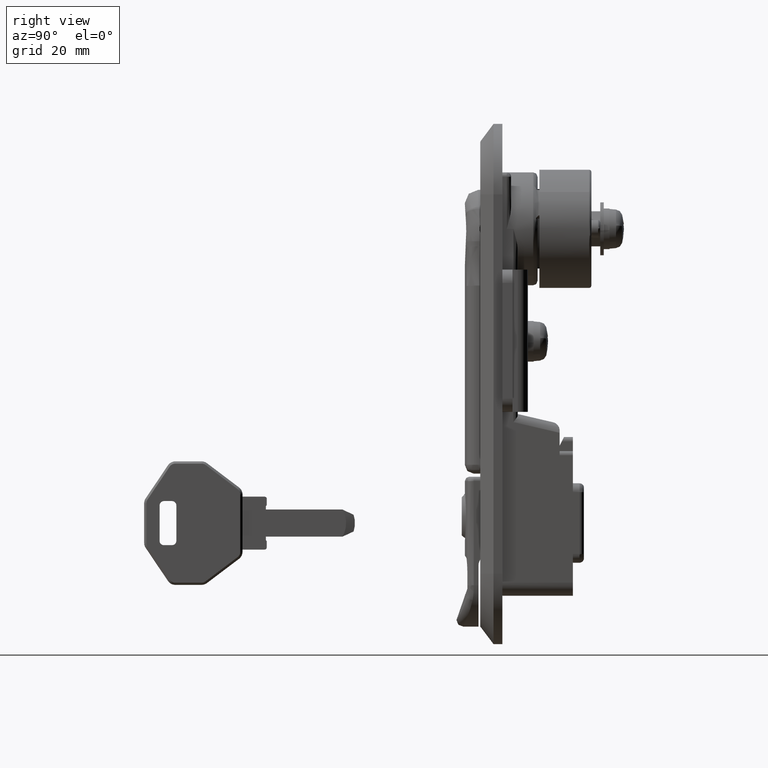
[diagram: clean part render]
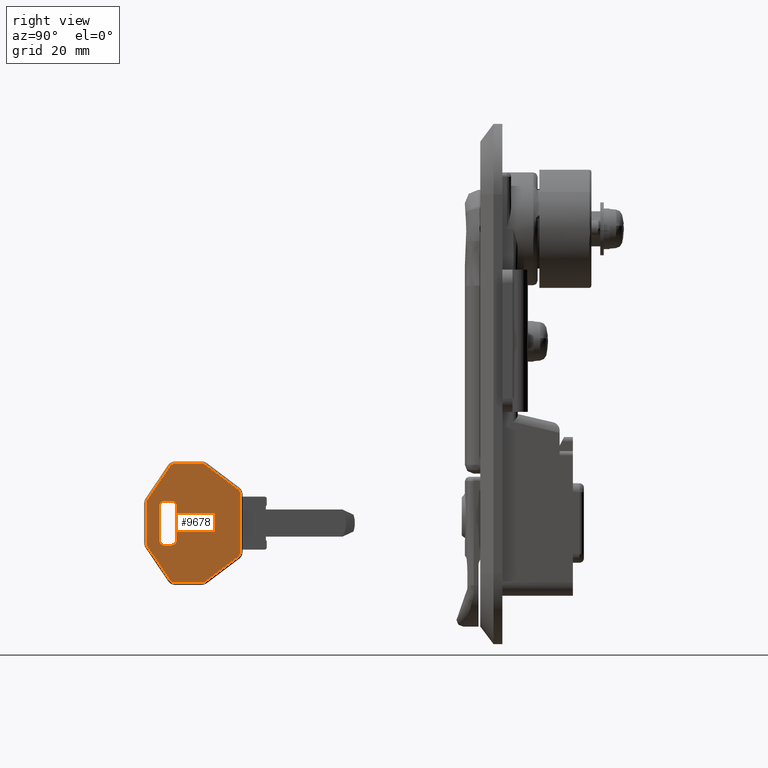
[diagram: same view with one face highlighted and labeled with its STEP entity id]
A machine part, right view. The second image highlights one B-rep face of the part: STEP entity #9678.
In plain terms, the highlighted face is a freeform B-spline surface patch.
Its self-contained STEP definition (entity closure, byte-faithful):
#8538=CARTESIAN_POINT('',(-69.409344827680201,-1.400000000000000,5.204633904281980));
#8539=VERTEX_POINT('',#8538);
#8545=CARTESIAN_POINT('',(-69.409344827680300,-1.400000000000000,-7.804633904440220));
#8546=VERTEX_POINT('',#8545);
#8547=CARTESIAN_POINT('',(-69.409344827680300,-1.400000000000000,-7.804633904440220));
#8548=CARTESIAN_POINT('',(-69.409344827680201,-1.400000000000000,5.204633904281980));
#8549=QUASI_UNIFORM_CURVE('',1,(#8547,#8548),.UNSPECIFIED.,.F.,.U.);
#8550=EDGE_CURVE('',#8546,#8539,#8549,.T.);
#8583=CARTESIAN_POINT('',(-70.004898363867497,-1.400000000000000,6.401286148710830));
#8584=VERTEX_POINT('',#8583);
#8590=CARTESIAN_POINT('',(-69.409344827680130,-1.400000000000000,5.204633904281980));
#8591=CARTESIAN_POINT('',(-69.409344827680130,-1.400000000000000,5.951158476011102));
#8592=CARTESIAN_POINT('',(-70.004898363867468,-1.400000000000000,6.401286148710874));
#8600=(BOUNDED_CURVE()B_SPLINE_CURVE(2,(#8590,#8591,#8592),.UNSPECIFIED.,.F.,.U.)CURVE()GEOMETRIC_REPRESENTATION_ITEM()QUASI_UNIFORM_CURVE()RATIONAL_B_SPLINE_CURVE((1.0,0.895255357204980,1.0))REPRESENTATION_ITEM(''));
#8601=EDGE_CURVE('',#8539,#8584,#8600,.T.);
#8634=CARTESIAN_POINT('',(-70.004898363867909,-1.400000000000000,-9.001286148869349));
#8635=VERTEX_POINT('',#8634);
#8657=CARTESIAN_POINT('',(-70.004898363867895,-1.400000000000000,-9.001286148869360));
#8658=CARTESIAN_POINT('',(-69.409344827680243,-1.400000000000000,-8.551158476169595));
#8659=CARTESIAN_POINT('',(-69.409344827680243,-1.400000000000000,-7.804633904440220));
#8667=(BOUNDED_CURVE()B_SPLINE_CURVE(2,(#8657,#8658,#8659),.UNSPECIFIED.,.F.,.U.)CURVE()GEOMETRIC_REPRESENTATION_ITEM()QUASI_UNIFORM_CURVE()RATIONAL_B_SPLINE_CURVE((1.0,0.895255357204920,1.0))REPRESENTATION_ITEM(''));
#8668=EDGE_CURVE('',#8635,#8546,#8667,.T.);
#8680=CARTESIAN_POINT('',(-77.275690428870107,-1.400000000000000,11.896652244352360));
#8681=VERTEX_POINT('',#8680);
#8687=CARTESIAN_POINT('',(-70.004898363867497,-1.400000000000000,6.401286148710830));
#8688=CARTESIAN_POINT('',(-77.275690428870107,-1.400000000000000,11.896652244352360));
#8689=QUASI_UNIFORM_CURVE('',1,(#8687,#8688),.UNSPECIFIED.,.F.,.U.);
#8690=EDGE_CURVE('',#8584,#8681,#8689,.T.);
#8706=CARTESIAN_POINT('',(-77.275690428863498,-1.400000000000000,-14.496652244505359));
#8707=VERTEX_POINT('',#8706);
#8721=CARTESIAN_POINT('',(-77.275690428863498,-1.400000000000000,-14.496652244505359));
#8722=CARTESIAN_POINT('',(-70.004898363867909,-1.400000000000000,-9.001286148869349));
#8723=QUASI_UNIFORM_CURVE('',1,(#8721,#8722),.UNSPECIFIED.,.F.,.U.);
#8724=EDGE_CURVE('',#8707,#8635,#8723,.T.);
#8745=CARTESIAN_POINT('',(-78.180136892682796,-1.400000000000000,12.199999999923421));
#8746=VERTEX_POINT('',#8745);
#8752=CARTESIAN_POINT('',(-77.275690428870064,-1.400000000000000,11.896652244352421));
#8753=CARTESIAN_POINT('',(-77.677042843933251,-1.400000000000000,12.199999999923412));
#8754=CARTESIAN_POINT('',(-78.180136892682597,-1.400000000000000,12.199999999923421));
#8762=(BOUNDED_CURVE()B_SPLINE_CURVE(2,(#8752,#8753,#8754),.UNSPECIFIED.,.F.,.U.)CURVE()GEOMETRIC_REPRESENTATION_ITEM()QUASI_UNIFORM_CURVE()RATIONAL_B_SPLINE_CURVE((1.0,0.948094974924101,1.0))REPRESENTATION_ITEM(''));
#8763=EDGE_CURVE('',#8681,#8746,#8762,.T.);
#8796=CARTESIAN_POINT('',(-78.180136892676501,-1.400000000000000,-14.800000000076420));
#8797=VERTEX_POINT('',#8796);
#8819=CARTESIAN_POINT('',(-78.180136892676501,-1.400000000000000,-14.800000000076370));
#8820=CARTESIAN_POINT('',(-77.677042843926870,-1.400000000000000,-14.800000000076542));
#8821=CARTESIAN_POINT('',(-77.275690428863484,-1.400000000000000,-14.496652244505380));
#8829=(BOUNDED_CURVE()B_SPLINE_CURVE(2,(#8819,#8820,#8821),.UNSPECIFIED.,.F.,.U.)CURVE()GEOMETRIC_REPRESENTATION_ITEM()QUASI_UNIFORM_CURVE()RATIONAL_B_SPLINE_CURVE((1.0,0.948094974924049,1.0))REPRESENTATION_ITEM(''));
#8830=EDGE_CURVE('',#8797,#8707,#8829,.T.);
#8842=CARTESIAN_POINT('',(-84.145616259275002,-1.400000000000000,12.199999999925160));
#8843=VERTEX_POINT('',#8842);
#8849=CARTESIAN_POINT('',(-78.180136892682796,-1.400000000000000,12.199999999923421));
#8850=CARTESIAN_POINT('',(-84.145616259275002,-1.400000000000000,12.199999999925160));
#8851=QUASI_UNIFORM_CURVE('',1,(#8849,#8850),.UNSPECIFIED.,.F.,.U.);
#8852=EDGE_CURVE('',#8746,#8843,#8851,.T.);
#8868=CARTESIAN_POINT('',(-84.145616259275400,-1.400000000000000,-14.800000000033499));
#8869=VERTEX_POINT('',#8868);
#8883=CARTESIAN_POINT('',(-84.145616259275400,-1.400000000000000,-14.800000000033499));
#8884=CARTESIAN_POINT('',(-78.180136892676501,-1.400000000000000,-14.800000000076420));
#8885=QUASI_UNIFORM_CURVE('',1,(#8883,#8884),.UNSPECIFIED.,.F.,.U.);
#8886=EDGE_CURVE('',#8869,#8797,#8885,.T.);
#8907=CARTESIAN_POINT('',(-85.389375090342710,-1.400000000000000,11.538489099521721));
#8908=VERTEX_POINT('',#8907);
#8914=CARTESIAN_POINT('',(-84.145616259275002,-1.400000000000000,12.199999999925160));
#8915=CARTESIAN_POINT('',(-84.943412685575964,-1.400000000000000,12.199999999925117));
#8916=CARTESIAN_POINT('',(-85.389375090342682,-1.400000000000000,11.538489099521710));
#8924=(BOUNDED_CURVE()B_SPLINE_CURVE(2,(#8914,#8915,#8916),.UNSPECIFIED.,.F.,.U.)CURVE()GEOMETRIC_REPRESENTATION_ITEM()QUASI_UNIFORM_CURVE()RATIONAL_B_SPLINE_CURVE((1.0,0.882890914287938,1.0))REPRESENTATION_ITEM(''));
#8925=EDGE_CURVE('',#8843,#8908,#8924,.T.);
#8958=CARTESIAN_POINT('',(-85.389375090342597,-1.400000000000000,-14.138489099630339));
#8959=VERTEX_POINT('',#8958);
#8981=CARTESIAN_POINT('',(-85.389375090342540,-1.400000000000000,-14.138489099630300));
#8982=CARTESIAN_POINT('',(-84.943412685575808,-1.400000000000001,-14.800000000033496));
#8983=CARTESIAN_POINT('',(-84.145616259275499,-1.400000000000000,-14.800000000033490));
#8991=(BOUNDED_CURVE()B_SPLINE_CURVE(2,(#8981,#8982,#8983),.UNSPECIFIED.,.F.,.U.)CURVE()GEOMETRIC_REPRESENTATION_ITEM()QUASI_UNIFORM_CURVE()RATIONAL_B_SPLINE_CURVE((1.0,0.882890914287979,1.0))REPRESENTATION_ITEM(''));
#8992=EDGE_CURVE('',#8959,#8869,#8991,.T.);
#9004=CARTESIAN_POINT('',(-90.453103658747295,-1.400000000000000,4.027291723061801));
#9005=VERTEX_POINT('',#9004);
#9011=CARTESIAN_POINT('',(-85.389375090342710,-1.400000000000000,11.538489099521721));
#9012=CARTESIAN_POINT('',(-90.453103658747295,-1.400000000000000,4.027291723061801));
#9013=QUASI_UNIFORM_CURVE('',1,(#9011,#9012),.UNSPECIFIED.,.F.,.U.);
#9014=EDGE_CURVE('',#8908,#9005,#9013,.T.);
#9030=CARTESIAN_POINT('',(-90.453103658748304,-1.400000000000000,-6.627291723206710));
#9031=VERTEX_POINT('',#9030);
#9045=CARTESIAN_POINT('',(-90.453103658748304,-1.400000000000000,-6.627291723206710));
#9046=CARTESIAN_POINT('',(-85.389375090342597,-1.400000000000000,-14.138489099630339));
#9047=QUASI_UNIFORM_CURVE('',1,(#9045,#9046),.UNSPECIFIED.,.F.,.U.);
#9048=EDGE_CURVE('',#9031,#8959,#9047,.T.);
#9069=CARTESIAN_POINT('',(-90.709344827679985,-1.400000000000000,3.188802623464980));
#9070=VERTEX_POINT('',#9069);
#9076=CARTESIAN_POINT('',(-90.453103658747182,-1.400000000000000,4.027291723061716));
#9077=CARTESIAN_POINT('',(-90.709344827680056,-1.400000000000000,3.647200655811702));
#9078=CARTESIAN_POINT('',(-90.709344827680056,-1.400000000000000,3.188802623464980));
#9086=(BOUNDED_CURVE()B_SPLINE_CURVE(2,(#9076,#9077,#9078),.UNSPECIFIED.,.F.,.U.)CURVE()GEOMETRIC_REPRESENTATION_ITEM()QUASI_UNIFORM_CURVE()RATIONAL_B_SPLINE_CURVE((1.0,0.956340042569780,1.0))REPRESENTATION_ITEM(''));
#9087=EDGE_CURVE('',#9005,#9070,#9086,.T.);
#9120=CARTESIAN_POINT('',(-90.709344827680198,-1.400000000000000,-5.788802623611520));
#9121=VERTEX_POINT('',#9120);
#9143=CARTESIAN_POINT('',(-90.709344827680155,-1.400000000000000,-5.788802623611520));
#9144=CARTESIAN_POINT('',(-90.709344827680155,-1.400000000000000,-6.247200655957229));
#9145=CARTESIAN_POINT('',(-90.453103658748319,-1.400000000000000,-6.627291723206718));
#9153=(BOUNDED_CURVE()B_SPLINE_CURVE(2,(#9143,#9144,#9145),.UNSPECIFIED.,.F.,.U.)CURVE()GEOMETRIC_REPRESENTATION_ITEM()QUASI_UNIFORM_CURVE()RATIONAL_B_SPLINE_CURVE((1.0,0.956340042569960,1.0))REPRESENTATION_ITEM(''));
#9154=EDGE_CURVE('',#9121,#9031,#9153,.T.);
#9171=CARTESIAN_POINT('',(-90.709344827679985,-1.400000000000000,3.188802623464980));
#9172=CARTESIAN_POINT('',(-90.709344827680198,-1.400000000000000,-5.788802623611520));
#9173=QUASI_UNIFORM_CURVE('',1,(#9171,#9172),.UNSPECIFIED.,.F.,.U.);
#9174=EDGE_CURVE('',#9070,#9121,#9173,.T.);
#9565=CARTESIAN_POINT('',(-91.773277834657094,-1.400000000000000,13.548649947594001));
#9566=CARTESIAN_POINT('',(-68.345412582450663,-1.400000000000000,13.548649947594001));
#9567=CARTESIAN_POINT('',(-91.773277834657094,-1.400000000000000,-16.148650671941699));
#9568=CARTESIAN_POINT('',(-68.345412582450663,-1.400000000000000,-16.148650671941699));
#9569=B_SPLINE_SURFACE_WITH_KNOTS('',1,1,((#9565,#9567),(#9566,#9568)),.UNSPECIFIED.,.F.,.F.,.U.,(2,2),(2,2),(0.0,23.427865252206431),(0.0,29.697300619535699),.UNSPECIFIED.);
#9570=ORIENTED_EDGE('',*,*,#8668,.T.);
#9571=ORIENTED_EDGE('',*,*,#8550,.T.);
#9572=ORIENTED_EDGE('',*,*,#8601,.T.);
#9573=ORIENTED_EDGE('',*,*,#8690,.T.);
#9574=ORIENTED_EDGE('',*,*,#8763,.T.);
#9575=ORIENTED_EDGE('',*,*,#8852,.T.);
#9576=ORIENTED_EDGE('',*,*,#8925,.T.);
#9577=ORIENTED_EDGE('',*,*,#9014,.T.);
#9578=ORIENTED_EDGE('',*,*,#9087,.T.);
#9579=ORIENTED_EDGE('',*,*,#9174,.T.);
#9580=ORIENTED_EDGE('',*,*,#9154,.T.);
#9581=ORIENTED_EDGE('',*,*,#9048,.T.);
#9582=ORIENTED_EDGE('',*,*,#8992,.T.);
#9583=ORIENTED_EDGE('',*,*,#8886,.T.);
#9584=ORIENTED_EDGE('',*,*,#8830,.T.);
#9585=ORIENTED_EDGE('',*,*,#8724,.T.);
#9586=EDGE_LOOP('',(#9570,#9571,#9572,#9573,#9574,#9575,#9576,#9577,#9578,#9579,#9580,#9581,#9582,#9583,#9584,#9585));
#9587=FACE_OUTER_BOUND('',#9586,.T.);
#9588=CARTESIAN_POINT('',(-84.909344827679988,-1.399999999999956,-6.300000000033620));
#9589=VERTEX_POINT('',#9588);
#9590=CARTESIAN_POINT('',(-83.909344827680201,-1.399999999999956,-5.300000000074521));
#9591=VERTEX_POINT('',#9590);
#9592=CARTESIAN_POINT('',(-84.909344827680087,-1.399999999999956,-6.300000000033730));
#9593=CARTESIAN_POINT('',(-83.909344827720886,-1.399999999999956,-6.300000000033730));
#9594=CARTESIAN_POINT('',(-83.909344827680087,-1.399999999999956,-5.300000000074521));
#9602=(BOUNDED_CURVE()B_SPLINE_CURVE(2,(#9592,#9593,#9594),.UNSPECIFIED.,.F.,.U.)CURVE()GEOMETRIC_REPRESENTATION_ITEM()QUASI_UNIFORM_CURVE()RATIONAL_B_SPLINE_CURVE((1.0,0.707106781200969,1.0))REPRESENTATION_ITEM(''));
#9603=EDGE_CURVE('',#9589,#9591,#9602,.T.);
#9604=ORIENTED_EDGE('',*,*,#9603,.F.);
#9605=CARTESIAN_POINT('',(-86.709344827680098,-1.399999999999956,-6.300000000034331));
#9606=VERTEX_POINT('',#9605);
#9607=CARTESIAN_POINT('',(-86.709344827680098,-1.399999999999956,-6.300000000034331));
#9608=CARTESIAN_POINT('',(-84.909344827679988,-1.399999999999956,-6.300000000033620));
#9609=QUASI_UNIFORM_CURVE('',1,(#9607,#9608),.UNSPECIFIED.,.F.,.U.);
#9610=EDGE_CURVE('',#9606,#9589,#9609,.T.);
#9611=ORIENTED_EDGE('',*,*,#9610,.F.);
#9612=CARTESIAN_POINT('',(-87.709344827680212,-1.399999999999956,-5.300000000074120));
#9613=VERTEX_POINT('',#9612);
#9614=CARTESIAN_POINT('',(-87.709344827680098,-1.399999999999956,-5.300000000074120));
#9615=CARTESIAN_POINT('',(-87.709344827640308,-1.399999999999956,-6.300000000034330));
#9616=CARTESIAN_POINT('',(-86.709344827680098,-1.399999999999956,-6.300000000034331));
#9624=(BOUNDED_CURVE()B_SPLINE_CURVE(2,(#9614,#9615,#9616),.UNSPECIFIED.,.F.,.U.)CURVE()GEOMETRIC_REPRESENTATION_ITEM()QUASI_UNIFORM_CURVE()RATIONAL_B_SPLINE_CURVE((1.0,0.707106781200616,1.0))REPRESENTATION_ITEM(''));
#9625=EDGE_CURVE('',#9613,#9606,#9624,.T.);
#9626=ORIENTED_EDGE('',*,*,#9625,.F.);
#9627=CARTESIAN_POINT('',(-87.709344827680098,-1.399999999999956,2.699999999925880));
#9628=VERTEX_POINT('',#9627);
#9629=CARTESIAN_POINT('',(-87.709344827680098,-1.399999999999956,2.699999999925880));
#9630=CARTESIAN_POINT('',(-87.709344827680212,-1.399999999999956,-5.300000000074120));
#9631=QUASI_UNIFORM_CURVE('',1,(#9629,#9630),.UNSPECIFIED.,.F.,.U.);
#9632=EDGE_CURVE('',#9628,#9613,#9631,.T.);
#9633=ORIENTED_EDGE('',*,*,#9632,.F.);
#9634=CARTESIAN_POINT('',(-86.709344827679999,-1.399999999999956,3.699999999925680));
#9635=VERTEX_POINT('',#9634);
#9636=CARTESIAN_POINT('',(-86.709344827680098,-1.399999999999956,3.699999999925880));
#9637=CARTESIAN_POINT('',(-87.709344827680098,-1.399999999999956,3.699999999925881));
#9638=CARTESIAN_POINT('',(-87.709344827680098,-1.399999999999956,2.699999999925880));
#9646=(BOUNDED_CURVE()B_SPLINE_CURVE(2,(#9636,#9637,#9638),.UNSPECIFIED.,.F.,.U.)CURVE()GEOMETRIC_REPRESENTATION_ITEM()QUASI_UNIFORM_CURVE()RATIONAL_B_SPLINE_CURVE((1.0,0.707106781186548,1.0))REPRESENTATION_ITEM(''));
#9647=EDGE_CURVE('',#9635,#9628,#9646,.T.);
#9648=ORIENTED_EDGE('',*,*,#9647,.F.);
#9649=CARTESIAN_POINT('',(-84.909344827680087,-1.399999999999956,3.699999999925280));
#9650=VERTEX_POINT('',#9649);
#9651=CARTESIAN_POINT('',(-84.909344827680087,-1.399999999999956,3.699999999925280));
#9652=CARTESIAN_POINT('',(-86.709344827679999,-1.399999999999956,3.699999999925680));
#9653=QUASI_UNIFORM_CURVE('',1,(#9651,#9652),.UNSPECIFIED.,.F.,.U.);
#9654=EDGE_CURVE('',#9650,#9635,#9653,.T.);
#9655=ORIENTED_EDGE('',*,*,#9654,.F.);
#9656=CARTESIAN_POINT('',(-83.909344827680201,-1.399999999999956,2.699999999925280));
#9657=VERTEX_POINT('',#9656);
#9658=CARTESIAN_POINT('',(-83.909344827680087,-1.399999999999956,2.699999999925280));
#9659=CARTESIAN_POINT('',(-83.909344827680087,-1.399999999999956,3.699999999925280));
#9660=CARTESIAN_POINT('',(-84.909344827680087,-1.399999999999956,3.699999999925280));
#9668=(BOUNDED_CURVE()B_SPLINE_CURVE(2,(#9658,#9659,#9660),.UNSPECIFIED.,.F.,.U.)CURVE()GEOMETRIC_REPRESENTATION_ITEM()QUASI_UNIFORM_CURVE()RATIONAL_B_SPLINE_CURVE((1.0,0.707106781186548,1.0))REPRESENTATION_ITEM(''));
#9669=EDGE_CURVE('',#9657,#9650,#9668,.T.);
#9670=ORIENTED_EDGE('',*,*,#9669,.F.);
#9671=CARTESIAN_POINT('',(-83.909344827680201,-1.399999999999956,-5.300000000074521));
#9672=CARTESIAN_POINT('',(-83.909344827680201,-1.399999999999956,2.699999999925280));
#9673=QUASI_UNIFORM_CURVE('',1,(#9671,#9672),.UNSPECIFIED.,.F.,.U.);
#9674=EDGE_CURVE('',#9591,#9657,#9673,.T.);
#9675=ORIENTED_EDGE('',*,*,#9674,.F.);
#9676=EDGE_LOOP('',(#9604,#9611,#9626,#9633,#9648,#9655,#9670,#9675));
#9677=FACE_BOUND('',#9676,.T.);
#9678=ADVANCED_FACE('',(#9587,#9677),#9569,.F.);